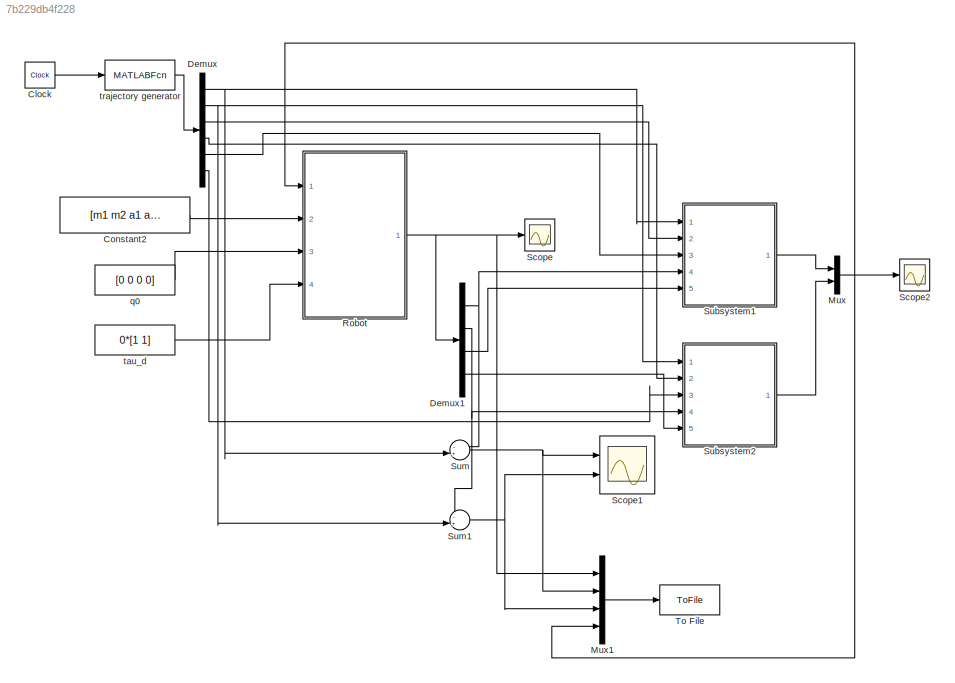
MODEL slx_7b229db4f228
KIND model
BLOCK [Clock] Clock
BLOCK [Constant] Constant2
  Value = [m1 m2 a1 a2 b1 b2 g]
BLOCK [Demux] Demux
  DisplayOption = bar
  Outputs = 6
  Ports = [1, 6]
BLOCK [Demux] Demux1
  DisplayOption = bar
  Ports = [1, 4]
BLOCK [Mux] Mux
  DisplayOption = bar
  Inputs = 2
  Ports = [2, 1]
BLOCK [Mux] Mux1
  DisplayOption = bar
  Ports = [4, 1]
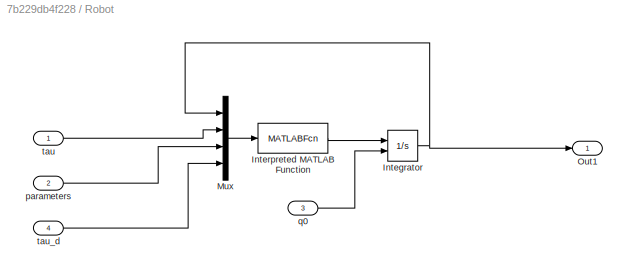
BLOCK [SubSystem] Robot
  Ports = [4, 1]
  RequestExecContextInheritance = off
BLOCK [Integrator] Robot/Integrator
  InitialConditionSource = external
  Ports = [2, 1]
BLOCK [MATLABFcn] Robot/Interpreted MATLAB Function
  MATLABFcn = planar_robot_simulink
  OutputDimensions = 4
  Ports = [1, 1]
BLOCK [Mux] Robot/Mux
  DisplayOption = bar
  Ports = [4, 1]
BLOCK [Outport] Robot/Out1
  IconDisplay = Port number
BLOCK [Inport] Robot/parameters
  IconDisplay = Port number
  Port = 2
BLOCK [Inport] Robot/q0
  IconDisplay = Port number
  Port = 3
BLOCK [Inport] Robot/tau
  IconDisplay = Port number
BLOCK [Inport] Robot/tau_d
  IconDisplay = Port number
  Port = 4
BLOCK [Scope] Scope
  Floating = off
  LimitDataPoints = off
  NumInputPorts = 1
  Ports = [1]
  ShowLegends = off
  YMax = 2.75
  YMin = -2.75
  ZoomMode = xonly
BLOCK [Scope] Scope1
  Floating = off
  LimitDataPoints = off
  NumInputPorts = 2
  Ports = [2]
  SaveName = ScopeData1
  ShowLegends = off
  TimeRange = 10
  YMax = 0.00035~0.0002
  YMin = -0.00025~-0.0002
  ZoomMode = yonly
BLOCK [Scope] Scope2
  Floating = off
  LimitDataPoints = off
  NumInputPorts = 1
  Ports = [1]
  SaveName = ScopeData2
  ShowLegends = off
  YMax = 35
  YMin = 5
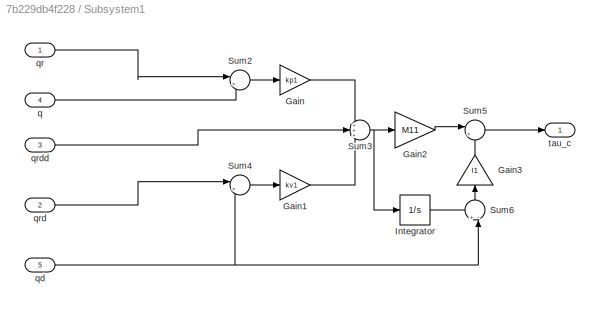
BLOCK [SubSystem] Subsystem1
  Ports = [5, 1]
  RequestExecContextInheritance = off
BLOCK [Gain] Subsystem1/Gain
  Gain = kp1
  OutDataTypeStr = Inherit: Inherit via internal rule
  ParamDataTypeStr = Inherit: Inherit via internal rule
  SaturateOnIntegerOverflow = off
BLOCK [Gain] Subsystem1/Gain1
  Gain = kv1
  OutDataTypeStr = Inherit: Inherit via internal rule
  ParamDataTypeStr = Inherit: Inherit via internal rule
  SaturateOnIntegerOverflow = off
BLOCK [Gain] Subsystem1/Gain2
  Gain = M11
  OutDataTypeStr = Inherit: Inherit via internal rule
  ParamDataTypeStr = Inherit: Inherit via internal rule
  SaturateOnIntegerOverflow = off
BLOCK [Gain] Subsystem1/Gain3
  Gain = l1
  OutDataTypeStr = Inherit: Inherit via internal rule
  ParamDataTypeStr = Inherit: Inherit via internal rule
  SaturateOnIntegerOverflow = off
BLOCK [Integrator] Subsystem1/Integrator
  Ports = [1, 1]
BLOCK [Sum] Subsystem1/Sum2
  IconShape = round
  InputSameDT = off
  Inputs = |+-
  OutDataTypeStr = Inherit: Inherit via internal rule
  Ports = [2, 1]
  SaturateOnIntegerOverflow = off
BLOCK [Sum] Subsystem1/Sum3
  IconShape = round
  InputSameDT = off
  Inputs = +++
  OutDataTypeStr = Inherit: Inherit via internal rule
  Ports = [3, 1]
  SaturateOnIntegerOverflow = off
BLOCK [Sum] Subsystem1/Sum4
  IconShape = round
  InputSameDT = off
  Inputs = |+-
  OutDataTypeStr = Inherit: Inherit via internal rule
  Ports = [2, 1]
  SaturateOnIntegerOverflow = off
BLOCK [Sum] Subsystem1/Sum5
  IconShape = round
  InputSameDT = off
  Inputs = |++
  OutDataTypeStr = Inherit: Inherit via internal rule
  Ports = [2, 1]
  SaturateOnIntegerOverflow = off
BLOCK [Sum] Subsystem1/Sum6
  IconShape = round
  InputSameDT = off
  Inputs = +-|
  OutDataTypeStr = Inherit: Inherit via internal rule
  Ports = [2, 1]
  SaturateOnIntegerOverflow = off
BLOCK [Inport] Subsystem1/q
  IconDisplay = Port number
  Port = 4
BLOCK [Inport] Subsystem1/qd
  IconDisplay = Port number
  Port = 5
BLOCK [Inport] Subsystem1/qr
  IconDisplay = Port number
BLOCK [Inport] Subsystem1/qrd
  IconDisplay = Port number
  Port = 2
BLOCK [Inport] Subsystem1/qrdd
  IconDisplay = Port number
  Port = 3
BLOCK [Outport] Subsystem1/tau_c
  IconDisplay = Port number
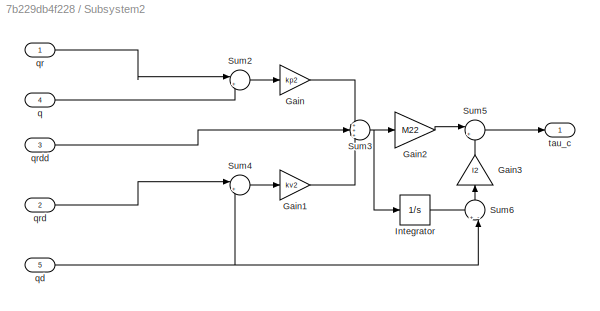
BLOCK [SubSystem] Subsystem2
  Ports = [5, 1]
  RequestExecContextInheritance = off
BLOCK [Gain] Subsystem2/Gain
  Gain = kp2
  OutDataTypeStr = Inherit: Inherit via internal rule
  ParamDataTypeStr = Inherit: Inherit via internal rule
  SaturateOnIntegerOverflow = off
BLOCK [Gain] Subsystem2/Gain1
  Gain = kv2
  OutDataTypeStr = Inherit: Inherit via internal rule
  ParamDataTypeStr = Inherit: Inherit via internal rule
  SaturateOnIntegerOverflow = off
BLOCK [Gain] Subsystem2/Gain2
  Gain = M22
  OutDataTypeStr = Inherit: Inherit via internal rule
  ParamDataTypeStr = Inherit: Inherit via internal rule
  SaturateOnIntegerOverflow = off
BLOCK [Gain] Subsystem2/Gain3
  Gain = l2
  OutDataTypeStr = Inherit: Inherit via internal rule
  ParamDataTypeStr = Inherit: Inherit via internal rule
  SaturateOnIntegerOverflow = off
BLOCK [Integrator] Subsystem2/Integrator
  Ports = [1, 1]
BLOCK [Sum] Subsystem2/Sum2
  IconShape = round
  InputSameDT = off
  Inputs = |+-
  OutDataTypeStr = Inherit: Inherit via internal rule
  Ports = [2, 1]
  SaturateOnIntegerOverflow = off
BLOCK [Sum] Subsystem2/Sum3
  IconShape = round
  InputSameDT = off
  Inputs = +++
  OutDataTypeStr = Inherit: Inherit via internal rule
  Ports = [3, 1]
  SaturateOnIntegerOverflow = off
BLOCK [Sum] Subsystem2/Sum4
  IconShape = round
  InputSameDT = off
  Inputs = |+-
  OutDataTypeStr = Inherit: Inherit via internal rule
  Ports = [2, 1]
  SaturateOnIntegerOverflow = off
BLOCK [Sum] Subsystem2/Sum5
  IconShape = round
  InputSameDT = off
  Inputs = |++
  OutDataTypeStr = Inherit: Inherit via internal rule
  Ports = [2, 1]
  SaturateOnIntegerOverflow = off
BLOCK [Sum] Subsystem2/Sum6
  IconShape = round
  InputSameDT = off
  Inputs = +-|
  OutDataTypeStr = Inherit: Inherit via internal rule
  Ports = [2, 1]
  SaturateOnIntegerOverflow = off
BLOCK [Inport] Subsystem2/q
  IconDisplay = Port number
  Port = 4
BLOCK [Inport] Subsystem2/qd
  IconDisplay = Port number
  Port = 5
BLOCK [Inport] Subsystem2/qr
  IconDisplay = Port number
BLOCK [Inport] Subsystem2/qrd
  IconDisplay = Port number
  Port = 2
BLOCK [Inport] Subsystem2/qrdd
  IconDisplay = Port number
  Port = 3
BLOCK [Outport] Subsystem2/tau_c
  IconDisplay = Port number
BLOCK [Sum] Sum
  IconShape = round
  InputSameDT = off
  Inputs = -+|
  OutDataTypeStr = Inherit: Inherit via internal rule
  Ports = [2, 1]
  SaturateOnIntegerOverflow = off
BLOCK [Sum] Sum1
  IconShape = round
  InputSameDT = off
  Inputs = -+|
  OutDataTypeStr = Inherit: Inherit via internal rule
  Ports = [2, 1]
  SaturateOnIntegerOverflow = off
BLOCK [ToFile] To File
  Filename = ct_dist_esti3.mat
  MatrixName = ct_de
  Ports = [1]
BLOCK [Constant] q0
  Value = [0 0 0 0]
BLOCK [Constant] tau_d
  Value = 0*[1 1]
BLOCK [MATLABFcn] trajectory generator
  MATLABFcn = trajectory_planar_robot_simulink
  Ports = [1, 1]
LINE Clock:1 -> trajectory generator:1
LINE Constant2:1 -> Robot:2
NET Demux1:1 -> Subsystem1:4, Sum:1
NET Demux1:2 -> Subsystem2:4, Sum1:1
LINE Demux1:3 -> Subsystem1:5
LINE Demux1:4 -> Subsystem2:5
NET Demux:1 -> Subsystem1:1, Sum:2
NET Demux:2 -> Subsystem2:1, Sum1:2
LINE Demux:3 -> Subsystem1:2
LINE Demux:4 -> Subsystem2:2
LINE Demux:5 -> Subsystem1:3
LINE Demux:6 -> Subsystem2:3
LINE Mux1:1 -> To File:1
NET Mux:1 -> Mux1:4, Robot:1, Scope2:1
NET Robot/Integrator:1 -> Robot/Mux:1, Robot/Out1:1
LINE Robot/Interpreted MATLAB Function:1 -> Robot/Integrator:1
LINE Robot/Mux:1 -> Robot/Interpreted MATLAB Function:1
LINE Robot/parameters:1 -> Robot/Mux:3
LINE Robot/q0:1 -> Robot/Integrator:2
LINE Robot/tau:1 -> Robot/Mux:2
LINE Robot/tau_d:1 -> Robot/Mux:4
NET Robot:1 -> Demux1:1, Mux1:1, Scope:1
LINE Subsystem1/Gain1:1 -> Subsystem1/Sum3:3
LINE Subsystem1/Gain2:1 -> Subsystem1/Sum5:1
LINE Subsystem1/Gain3:1 -> Subsystem1/Sum5:2
LINE Subsystem1/Gain:1 -> Subsystem1/Sum3:1
LINE Subsystem1/Integrator:1 -> Subsystem1/Sum6:1
LINE Subsystem1/Sum2:1 -> Subsystem1/Gain:1
NET Subsystem1/Sum3:1 -> Subsystem1/Gain2:1, Subsystem1/Integrator:1
LINE Subsystem1/Sum4:1 -> Subsystem1/Gain1:1
LINE Subsystem1/Sum5:1 -> Subsystem1/tau_c:1
LINE Subsystem1/Sum6:1 -> Subsystem1/Gain3:1
LINE Subsystem1/q:1 -> Subsystem1/Sum2:2
NET Subsystem1/qd:1 -> Subsystem1/Sum4:2, Subsystem1/Sum6:2
LINE Subsystem1/qr:1 -> Subsystem1/Sum2:1
LINE Subsystem1/qrd:1 -> Subsystem1/Sum4:1
LINE Subsystem1/qrdd:1 -> Subsystem1/Sum3:2
LINE Subsystem1:1 -> Mux:1
LINE Subsystem2/Gain1:1 -> Subsystem2/Sum3:3
LINE Subsystem2/Gain2:1 -> Subsystem2/Sum5:1
LINE Subsystem2/Gain3:1 -> Subsystem2/Sum5:2
LINE Subsystem2/Gain:1 -> Subsystem2/Sum3:1
LINE Subsystem2/Integrator:1 -> Subsystem2/Sum6:1
LINE Subsystem2/Sum2:1 -> Subsystem2/Gain:1
NET Subsystem2/Sum3:1 -> Subsystem2/Gain2:1, Subsystem2/Integrator:1
LINE Subsystem2/Sum4:1 -> Subsystem2/Gain1:1
LINE Subsystem2/Sum5:1 -> Subsystem2/tau_c:1
LINE Subsystem2/Sum6:1 -> Subsystem2/Gain3:1
LINE Subsystem2/q:1 -> Subsystem2/Sum2:2
NET Subsystem2/qd:1 -> Subsystem2/Sum4:2, Subsystem2/Sum6:2
LINE Subsystem2/qr:1 -> Subsystem2/Sum2:1
LINE Subsystem2/qrd:1 -> Subsystem2/Sum4:1
LINE Subsystem2/qrdd:1 -> Subsystem2/Sum3:2
LINE Subsystem2:1 -> Mux:2
NET Sum1:1 -> Mux1:3, Scope1:2
NET Sum:1 -> Mux1:2, Scope1:1
LINE q0:1 -> Robot:3
LINE tau_d:1 -> Robot:4
LINE trajectory generator:1 -> Demux:1
note: NET lines group one-source signal fan-out (src -> all destinations, sorted); 1:1 wires keep LINE
